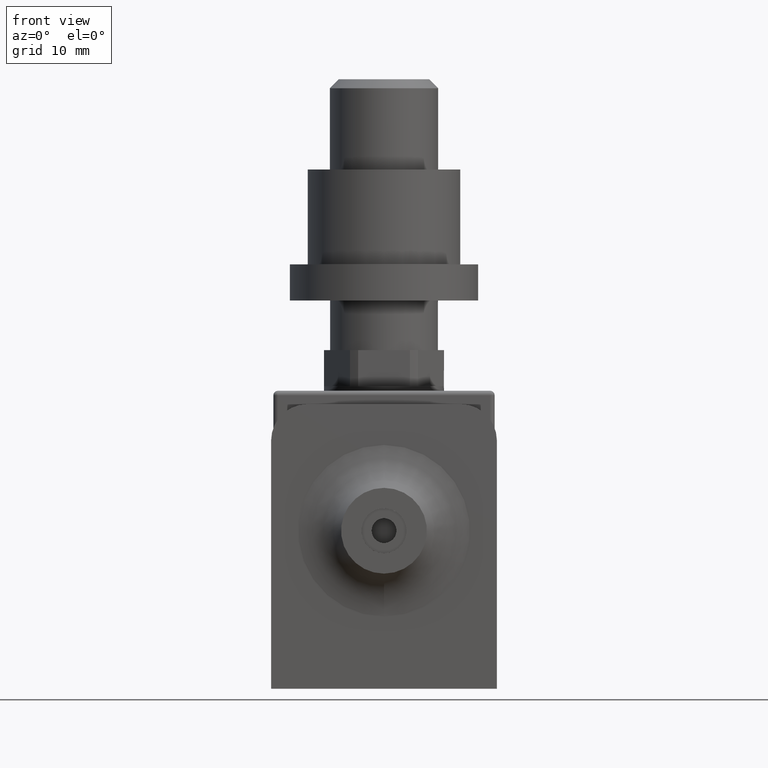
[diagram: clean part render]
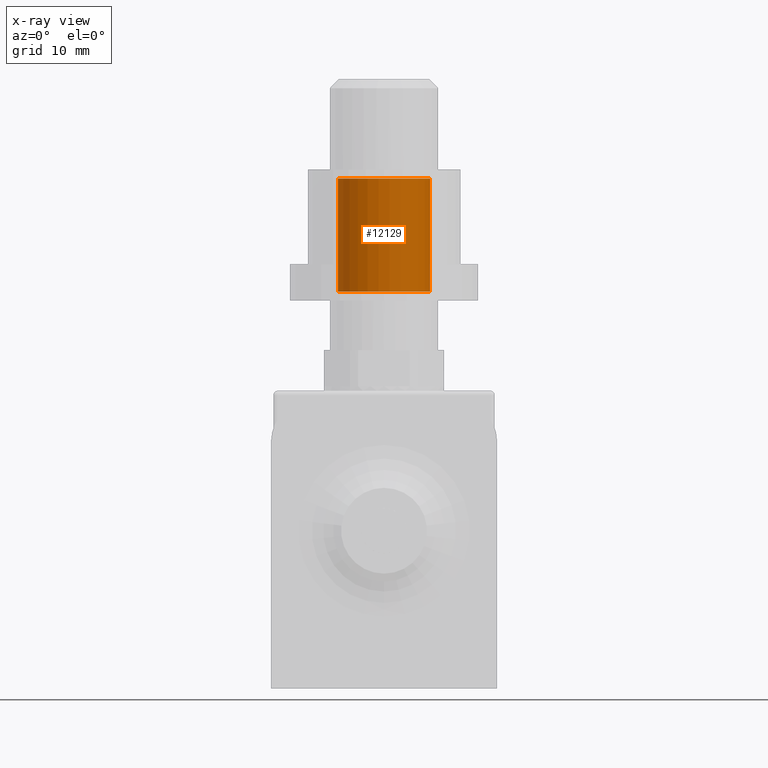
[diagram: x-ray — body ghosted, one internal face saturated and labeled with its STEP entity id]
A machine part, front view, then the same camera in x-ray: the body is ghosted and one INTERNAL B-rep face — a face not visible from any outside direction — is saturated and labeled: STEP entity #12129.
In plain terms, the highlighted cylindrical surface (bore or boss wall) has radius 5.1 mm, axis along (0, 0, 1).
Its self-contained STEP definition (entity closure, byte-faithful):
#299 = EDGE_LOOP ( 'NONE', ( #2807 ) ) ;
#799 = VERTEX_POINT ( 'NONE', #13459 ) ;
#1732 = CARTESIAN_POINT ( 'NONE',  ( 5.099999999999996980, -1.997705091109120260E-15, 6.250000000000005329 ) ) ;
#2807 = ORIENTED_EDGE ( 'NONE', *, *, #9247, .T. ) ;
#4354 = VERTEX_POINT ( 'NONE', #1732 ) ;
#4678 = ORIENTED_EDGE ( 'NONE', *, *, #11564, .T. ) ;
#5227 = AXIS2_PLACEMENT_3D ( 'NONE', #10478, #8156, #12978 ) ;
#5289 = EDGE_LOOP ( 'NONE', ( #4678 ) ) ;
#5411 = DIRECTION ( 'NONE',  ( -1.000000000000000000, 0.000000000000000000, 0.000000000000000000 ) ) ;
#5880 = DIRECTION ( 'NONE',  ( -0.000000000000000000, -0.000000000000000000, 1.000000000000000000 ) ) ;
#7900 = CIRCLE ( 'NONE', #10641, 5.099999999999996980 ) ;
#8156 = DIRECTION ( 'NONE',  ( 0.000000000000000000, 0.000000000000000000, 1.000000000000000000 ) ) ;
#9247 = EDGE_CURVE ( 'NONE', #4354, #4354, #12092, .T. ) ;
#9767 = FACE_OUTER_BOUND ( 'NONE', #5289, .T. ) ;
#10213 = DIRECTION ( 'NONE',  ( -0.000000000000000000, -0.000000000000000000, -1.000000000000000000 ) ) ;
#10478 = CARTESIAN_POINT ( 'NONE',  ( 0.000000000000000000, -1.997705091109120260E-15, 6.250000000000005329 ) ) ;
#10641 = AXIS2_PLACEMENT_3D ( 'NONE', #12526, #10213, #5411 ) ;
#11564 = EDGE_CURVE ( 'NONE', #799, #799, #7900, .T. ) ;
#11792 = CARTESIAN_POINT ( 'NONE',  ( 0.000000000000000000, -1.997705091109120260E-15, 7.250000000000006217 ) ) ;
#11962 = CYLINDRICAL_SURFACE ( 'NONE', #15309, 5.099999999999996980 ) ;
#12092 = CIRCLE ( 'NONE', #5227, 5.099999999999996980 ) ;
#12129 = ADVANCED_FACE ( 'NONE', ( #13076, #9767 ), #11962, .F. ) ;
#12526 = CARTESIAN_POINT ( 'NONE',  ( 0.000000000000000000, -1.997705091109120260E-15, -6.249999999999992006 ) ) ;
#12978 = DIRECTION ( 'NONE',  ( 1.000000000000000000, 0.000000000000000000, 0.000000000000000000 ) ) ;
#13076 = FACE_OUTER_BOUND ( 'NONE', #299, .T. ) ;
#13167 = DIRECTION ( 'NONE',  ( 1.000000000000000000, 0.000000000000000000, 0.000000000000000000 ) ) ;
#13459 = CARTESIAN_POINT ( 'NONE',  ( -5.099999999999996980, -1.997705091109120260E-15, -6.249999999999992006 ) ) ;
#15309 = AXIS2_PLACEMENT_3D ( 'NONE', #11792, #5880, #13167 ) ;